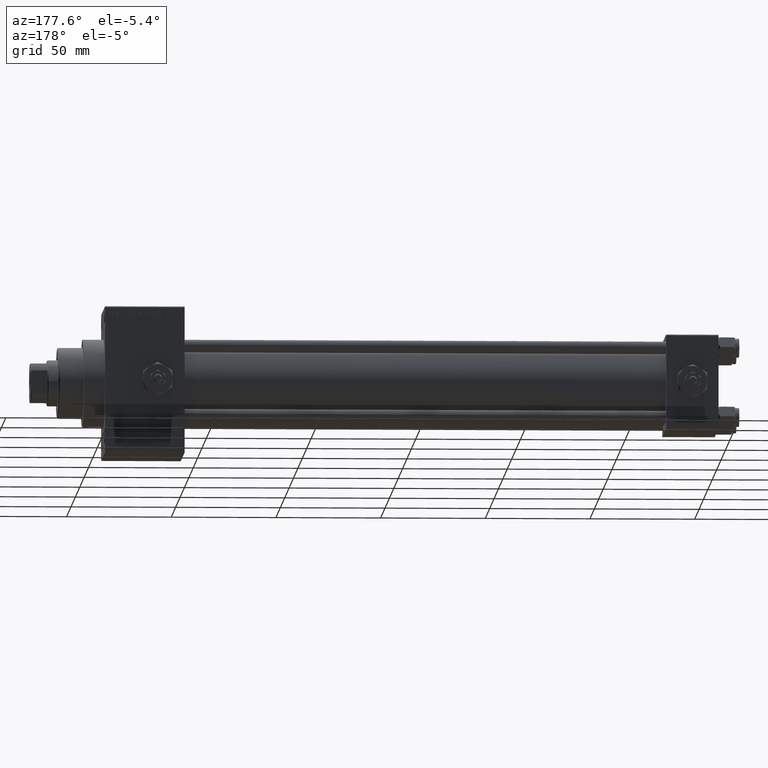
[diagram: clean part render]
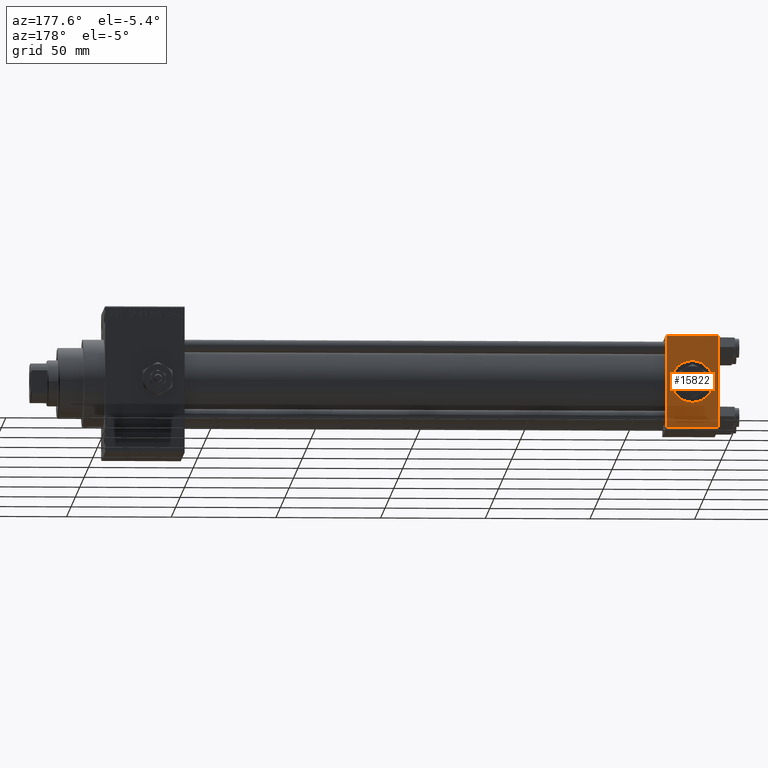
[diagram: same view with one face highlighted and labeled with its STEP entity id]
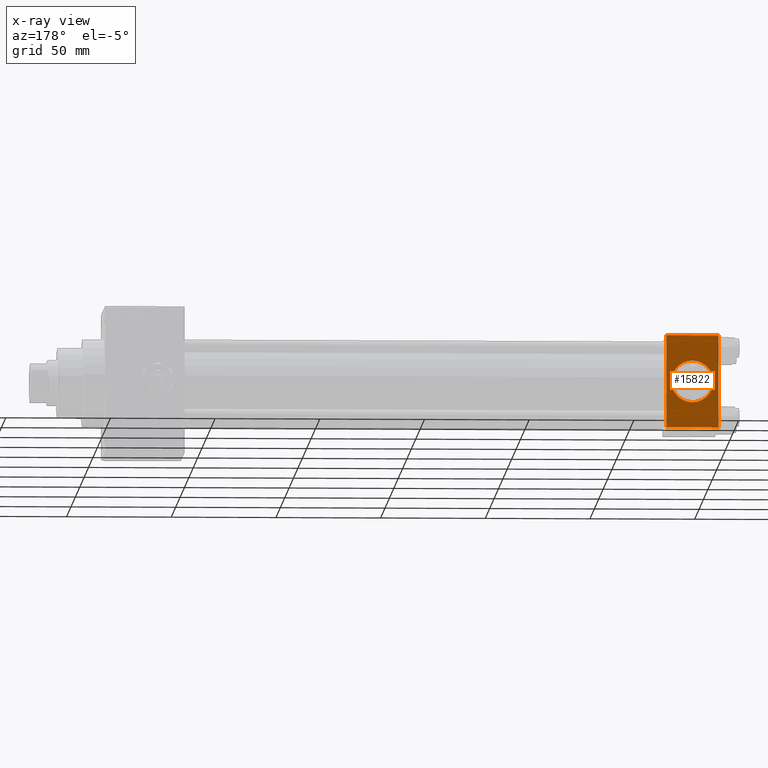
[diagram: x-ray of the same camera — body ghosted, the highlighted face saturated]
A machine part, auxiliary view. The second image highlights one B-rep face of the part: STEP entity #15822.
The next image is the same camera in x-ray: the body ghosted, the highlighted face saturated — about 0% of this face is hidden behind the body in this view.
In plain terms, the highlighted planar face has unit normal (0, 1, 0).
Its self-contained STEP definition (entity closure, byte-faithful):
#731 = ORIENTED_EDGE ( 'NONE', *, *, #21377, .T. ) ;
#835 = ORIENTED_EDGE ( 'NONE', *, *, #29320, .T. ) ;
#1403 = LINE ( 'NONE', #5121, #44819 ) ;
#2315 = EDGE_LOOP ( 'NONE', ( #12043, #11437 ) ) ;
#3648 = VERTEX_POINT ( 'NONE', #27326 ) ;
#5121 = CARTESIAN_POINT ( 'NONE',  ( 25.00000000000000000, 22.50000000000000000, 21.99999999999999645 ) ) ;
#5202 = CARTESIAN_POINT ( 'NONE',  ( 0.000000000000000000, 22.50000000000000000, 22.50000000000000355 ) ) ;
#5663 = DIRECTION ( 'NONE',  ( 0.000000000000000000, 0.000000000000000000, 1.000000000000000000 ) ) ;
#6175 = EDGE_CURVE ( 'NONE', #14855, #16797, #34868, .T. ) ;
#8346 = DIRECTION ( 'NONE',  ( 1.000000000000000000, 0.000000000000000000, 0.000000000000000000 ) ) ;
#9148 = DIRECTION ( 'NONE',  ( 0.000000000000000000, 0.000000000000000000, 1.000000000000000000 ) ) ;
#9289 = CARTESIAN_POINT ( 'NONE',  ( 25.00000000000000000, 22.50000000000000000, 22.50000000000000355 ) ) ;
#10153 = AXIS2_PLACEMENT_3D ( 'NONE', #46897, #12862, #9148 ) ;
#11437 = ORIENTED_EDGE ( 'NONE', *, *, #40146, .F. ) ;
#11669 = DIRECTION ( 'NONE',  ( 0.000000000000000000, 0.000000000000000000, -1.000000000000000000 ) ) ;
#12043 = ORIENTED_EDGE ( 'NONE', *, *, #6175, .F. ) ;
#12539 = VECTOR ( 'NONE', #13868, 1000.000000000000000 ) ;
#12862 = DIRECTION ( 'NONE',  ( 0.000000000000000000, 1.000000000000000000, 0.000000000000000000 ) ) ;
#13868 = DIRECTION ( 'NONE',  ( -1.000000000000000000, 0.000000000000000000, 0.000000000000000000 ) ) ;
#14855 = VERTEX_POINT ( 'NONE', #30877 ) ;
#15822 = ADVANCED_FACE ( 'NONE', ( #45859, #34667 ), #42381, .T. ) ;
#16797 = VERTEX_POINT ( 'NONE', #23451 ) ;
#18816 = CARTESIAN_POINT ( 'NONE',  ( 25.00000000000000000, 22.50000000000000000, 22.50000000000000355 ) ) ;
#20598 = CARTESIAN_POINT ( 'NONE',  ( 0.000000000000000000, 22.50000000000000000, -21.99999999999996803 ) ) ;
#21325 = LINE ( 'NONE', #36468, #12539 ) ;
#21377 = EDGE_CURVE ( 'NONE', #47358, #3648, #1403, .T. ) ;
#23451 = CARTESIAN_POINT ( 'NONE',  ( 12.50000000000000178, 22.50000000000000000, -9.999999999999996447 ) ) ;
#26512 = DIRECTION ( 'NONE',  ( 0.000000000000000000, -0.000000000000000000, 1.000000000000000000 ) ) ;
#27021 = VECTOR ( 'NONE', #11669, 1000.000000000000000 ) ;
#27193 = AXIS2_PLACEMENT_3D ( 'NONE', #18816, #49115, #26512 ) ;
#27326 = CARTESIAN_POINT ( 'NONE',  ( 25.00000000000000000, 22.50000000000000000, 21.99999999999999645 ) ) ;
#27683 = LINE ( 'NONE', #9289, #30635 ) ;
#27783 = CARTESIAN_POINT ( 'NONE',  ( 12.50000000000000000, 22.50000000000000000, 0.000000000000000000 ) ) ;
#27855 = CARTESIAN_POINT ( 'NONE',  ( 25.00000000000000000, 22.50000000000000000, -21.99999999999996803 ) ) ;
#29320 = EDGE_CURVE ( 'NONE', #3648, #47495, #27683, .T. ) ;
#30635 = VECTOR ( 'NONE', #36355, 1000.000000000000000 ) ;
#30877 = CARTESIAN_POINT ( 'NONE',  ( 12.50000000000000000, 22.50000000000000000, 9.999999999999996447 ) ) ;
#31273 = LINE ( 'NONE', #5202, #27021 ) ;
#34667 = FACE_OUTER_BOUND ( 'NONE', #42041, .T. ) ;
#34868 = CIRCLE ( 'NONE', #37299, 9.999999999999996447 ) ;
#36355 = DIRECTION ( 'NONE',  ( 0.000000000000000000, 0.000000000000000000, -1.000000000000000000 ) ) ;
#36468 = CARTESIAN_POINT ( 'NONE',  ( 25.00000000000000000, 22.50000000000000000, -21.99999999999998224 ) ) ;
#37299 = AXIS2_PLACEMENT_3D ( 'NONE', #27783, #47385, #5663 ) ;
#40146 = EDGE_CURVE ( 'NONE', #16797, #14855, #48234, .T. ) ;
#41149 = EDGE_CURVE ( 'NONE', #47495, #47250, #21325, .T. ) ;
#42041 = EDGE_LOOP ( 'NONE', ( #835, #43306, #48348, #731 ) ) ;
#42381 = PLANE ( 'NONE',  #27193 ) ;
#43306 = ORIENTED_EDGE ( 'NONE', *, *, #41149, .T. ) ;
#44781 = CARTESIAN_POINT ( 'NONE',  ( 0.000000000000000000, 22.50000000000000000, 21.99999999999999645 ) ) ;
#44819 = VECTOR ( 'NONE', #8346, 1000.000000000000000 ) ;
#45859 = FACE_BOUND ( 'NONE', #2315, .T. ) ;
#46050 = EDGE_CURVE ( 'NONE', #47358, #47250, #31273, .T. ) ;
#46897 = CARTESIAN_POINT ( 'NONE',  ( 12.50000000000000000, 22.50000000000000000, 0.000000000000000000 ) ) ;
#47250 = VERTEX_POINT ( 'NONE', #20598 ) ;
#47358 = VERTEX_POINT ( 'NONE', #44781 ) ;
#47385 = DIRECTION ( 'NONE',  ( 0.000000000000000000, 1.000000000000000000, 0.000000000000000000 ) ) ;
#47495 = VERTEX_POINT ( 'NONE', #27855 ) ;
#48234 = CIRCLE ( 'NONE', #10153, 9.999999999999996447 ) ;
#48348 = ORIENTED_EDGE ( 'NONE', *, *, #46050, .F. ) ;
#49115 = DIRECTION ( 'NONE',  ( -0.000000000000000000, 1.000000000000000000, 0.000000000000000000 ) ) ;